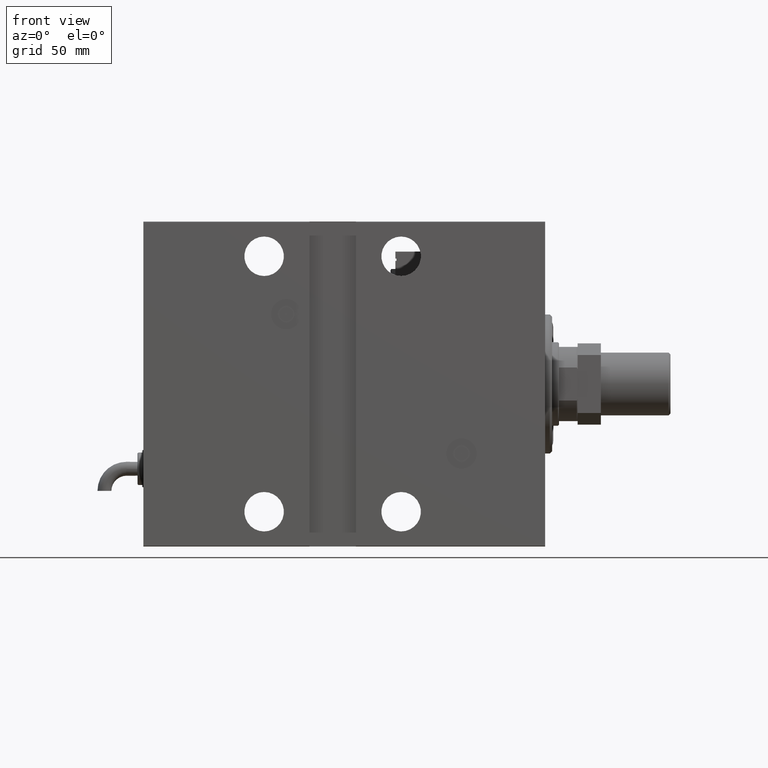
[diagram: clean part render]
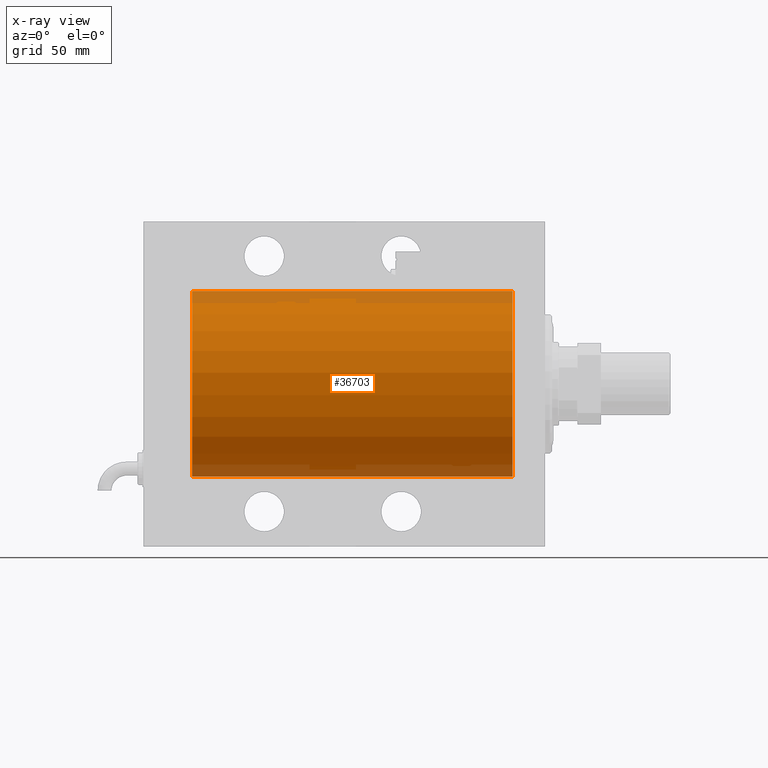
[diagram: x-ray — body ghosted, one internal face saturated and labeled with its STEP entity id]
A machine part, front view, then the same camera in x-ray: the body is ghosted and one INTERNAL B-rep face — a face not visible from any outside direction — is saturated and labeled: STEP entity #36703.
In plain terms, the highlighted cylindrical surface (partial cylindrical patch) has radius 40 mm, axis along (1, 0, -0).
Its self-contained STEP definition (entity closure, byte-faithful):
#2561 = CARTESIAN_POINT ( 'NONE',  ( 13.99999999999998401, 4.898587196589413026E-15, -40.00000000000000000 ) ) ;
#3429 = CARTESIAN_POINT ( 'NONE',  ( 152.0000000000000000, 0.000000000000000000, 40.00000000000000000 ) ) ;
#4706 = DIRECTION ( 'NONE',  ( 0.000000000000000000, 0.000000000000000000, 1.000000000000000000 ) ) ;
#4842 = DIRECTION ( 'NONE',  ( 0.000000000000000000, 0.000000000000000000, 1.000000000000000000 ) ) ;
#6731 = VERTEX_POINT ( 'NONE', #58608 ) ;
#8580 = VERTEX_POINT ( 'NONE', #57051 ) ;
#9061 = CARTESIAN_POINT ( 'NONE',  ( 152.0000000000000000, 4.898587196589413026E-15, -40.00000000000000000 ) ) ;
#9403 = DIRECTION ( 'NONE',  ( -1.000000000000000000, 0.000000000000000000, 0.000000000000000000 ) ) ;
#11149 = AXIS2_PLACEMENT_3D ( 'NONE', #18689, #23243, #17801 ) ;
#13109 = VECTOR ( 'NONE', #23167, 1000.000000000000000 ) ;
#16409 = AXIS2_PLACEMENT_3D ( 'NONE', #22757, #9403, #4842 ) ;
#17801 = DIRECTION ( 'NONE',  ( 0.000000000000000000, 0.000000000000000000, 1.000000000000000000 ) ) ;
#18689 = CARTESIAN_POINT ( 'NONE',  ( 152.0000000000000000, 0.000000000000000000, 0.000000000000000000 ) ) ;
#20646 = EDGE_CURVE ( 'NONE', #6731, #8580, #57131, .T. ) ;
#22658 = CYLINDRICAL_SURFACE ( 'NONE', #11149, 40.00000000000000000 ) ;
#22757 = CARTESIAN_POINT ( 'NONE',  ( 13.99999999999998401, 0.000000000000000000, 0.000000000000000000 ) ) ;
#22866 = CIRCLE ( 'NONE', #32557, 40.00000000000000000 ) ;
#23167 = DIRECTION ( 'NONE',  ( -1.000000000000000000, -0.000000000000000000, -0.000000000000000000 ) ) ;
#23243 = DIRECTION ( 'NONE',  ( -1.000000000000000000, -0.000000000000000000, -0.000000000000000000 ) ) ;
#23809 = CARTESIAN_POINT ( 'NONE',  ( 152.0000000000000000, 0.000000000000000000, 0.000000000000000000 ) ) ;
#27239 = EDGE_CURVE ( 'NONE', #6731, #28129, #22866, .T. ) ;
#28129 = VERTEX_POINT ( 'NONE', #9061 ) ;
#32557 = AXIS2_PLACEMENT_3D ( 'NONE', #23809, #42316, #4706 ) ;
#33818 = ORIENTED_EDGE ( 'NONE', *, *, #27239, .F. ) ;
#36703 = ADVANCED_FACE ( 'NONE', ( #45705 ), #22658, .F. ) ;
#37130 = LINE ( 'NONE', #50473, #13109 ) ;
#37160 = EDGE_CURVE ( 'NONE', #28129, #40187, #37130, .T. ) ;
#39703 = ORIENTED_EDGE ( 'NONE', *, *, #51462, .T. ) ;
#40187 = VERTEX_POINT ( 'NONE', #2561 ) ;
#42316 = DIRECTION ( 'NONE',  ( -1.000000000000000000, 0.000000000000000000, 0.000000000000000000 ) ) ;
#43253 = ORIENTED_EDGE ( 'NONE', *, *, #37160, .F. ) ;
#44986 = DIRECTION ( 'NONE',  ( -1.000000000000000000, -0.000000000000000000, -0.000000000000000000 ) ) ;
#45705 = FACE_OUTER_BOUND ( 'NONE', #55373, .T. ) ;
#47800 = VECTOR ( 'NONE', #44986, 1000.000000000000000 ) ;
#49383 = CIRCLE ( 'NONE', #16409, 40.00000000000000000 ) ;
#50473 = CARTESIAN_POINT ( 'NONE',  ( 152.0000000000000000, 4.898587196589413026E-15, -40.00000000000000000 ) ) ;
#51462 = EDGE_CURVE ( 'NONE', #8580, #40187, #49383, .T. ) ;
#55373 = EDGE_LOOP ( 'NONE', ( #43253, #33818, #58219, #39703 ) ) ;
#57051 = CARTESIAN_POINT ( 'NONE',  ( 13.99999999999998401, 0.000000000000000000, 40.00000000000000000 ) ) ;
#57131 = LINE ( 'NONE', #3429, #47800 ) ;
#58219 = ORIENTED_EDGE ( 'NONE', *, *, #20646, .T. ) ;
#58608 = CARTESIAN_POINT ( 'NONE',  ( 152.0000000000000000, 0.000000000000000000, 40.00000000000000000 ) ) ;